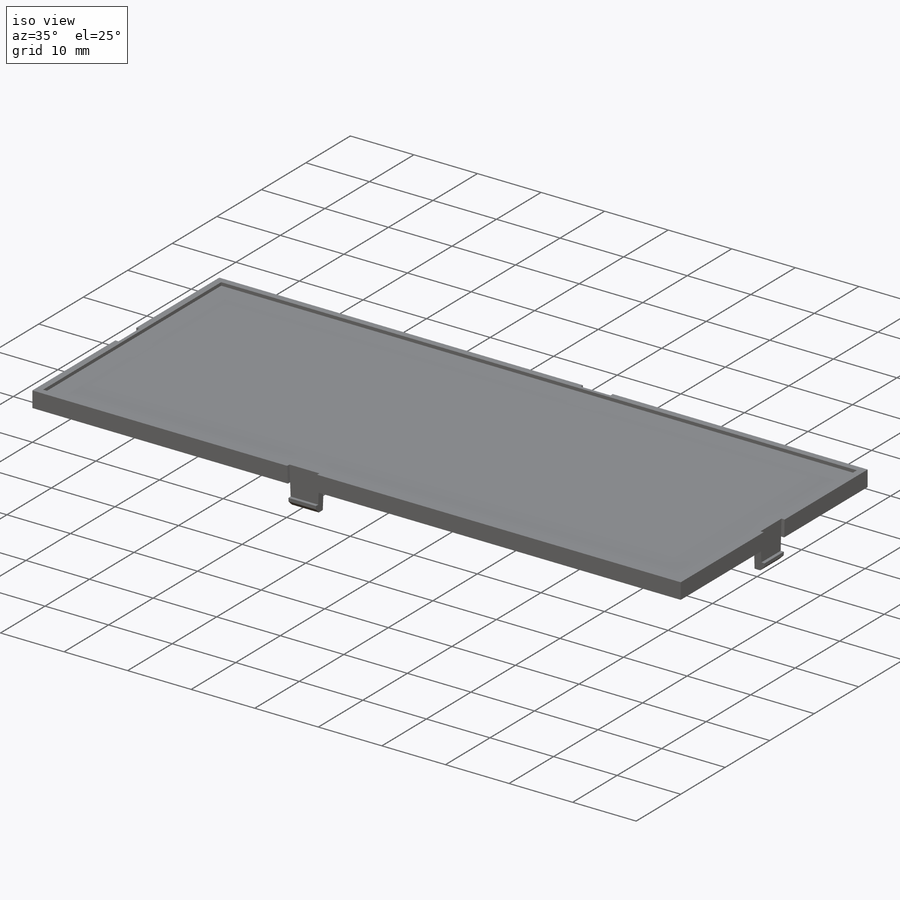
[diagram: iso view]
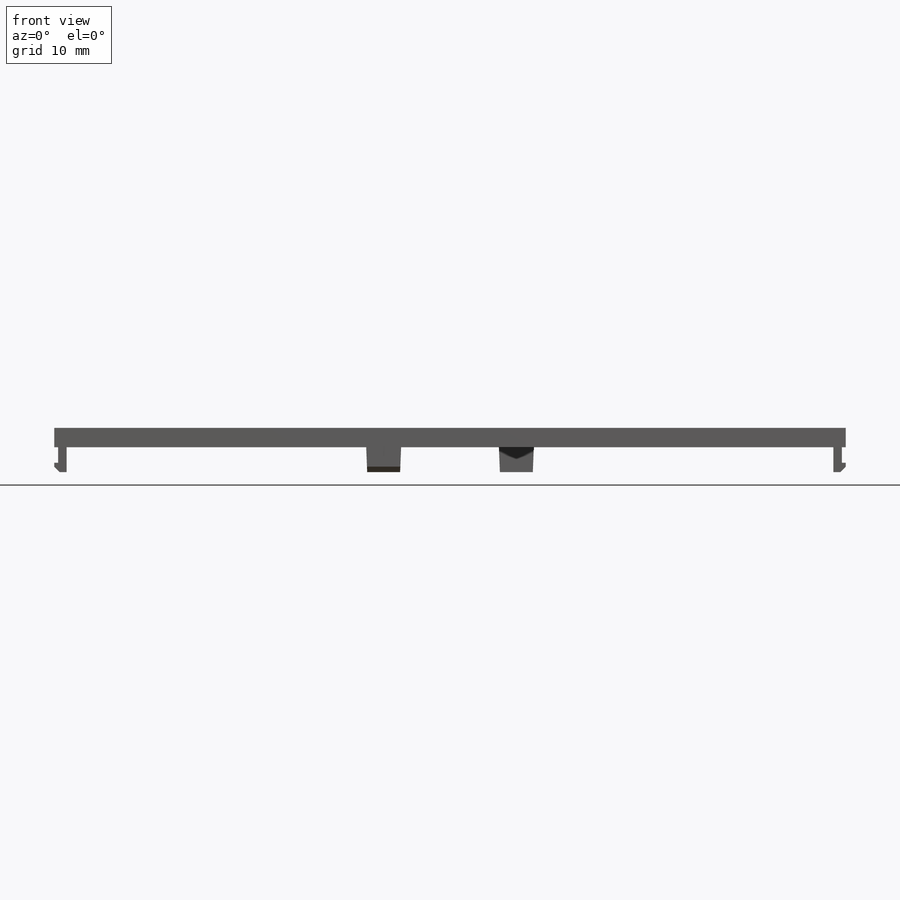
[diagram: front view]
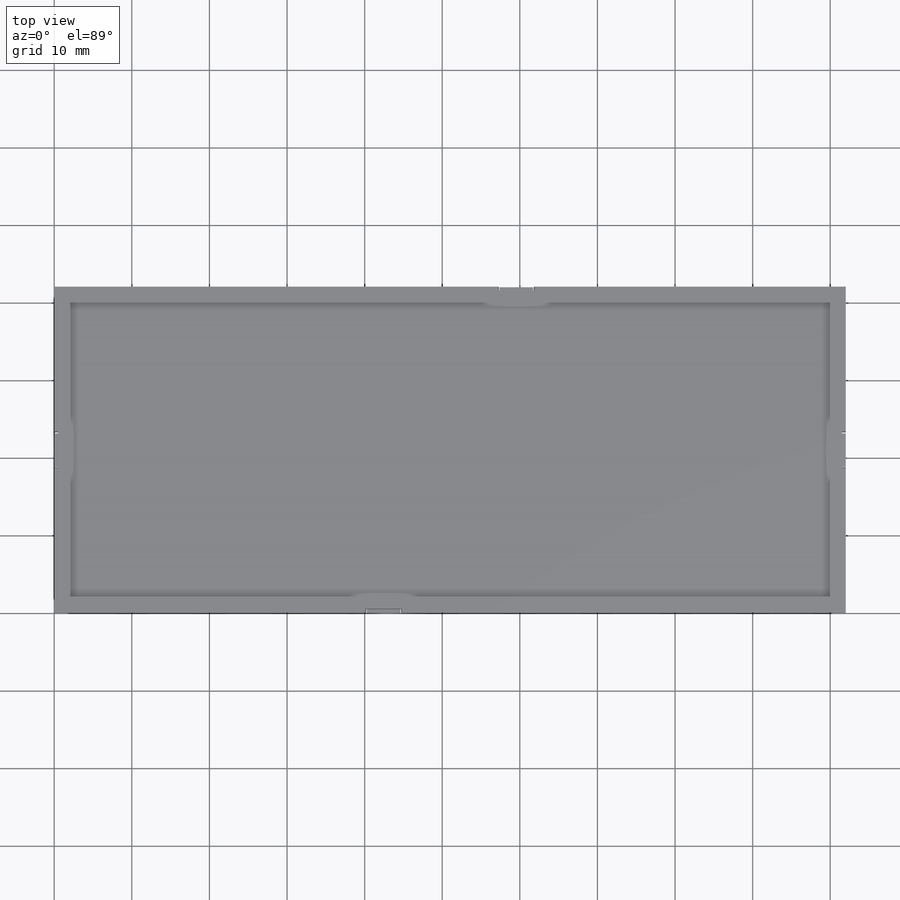
[diagram: top view]
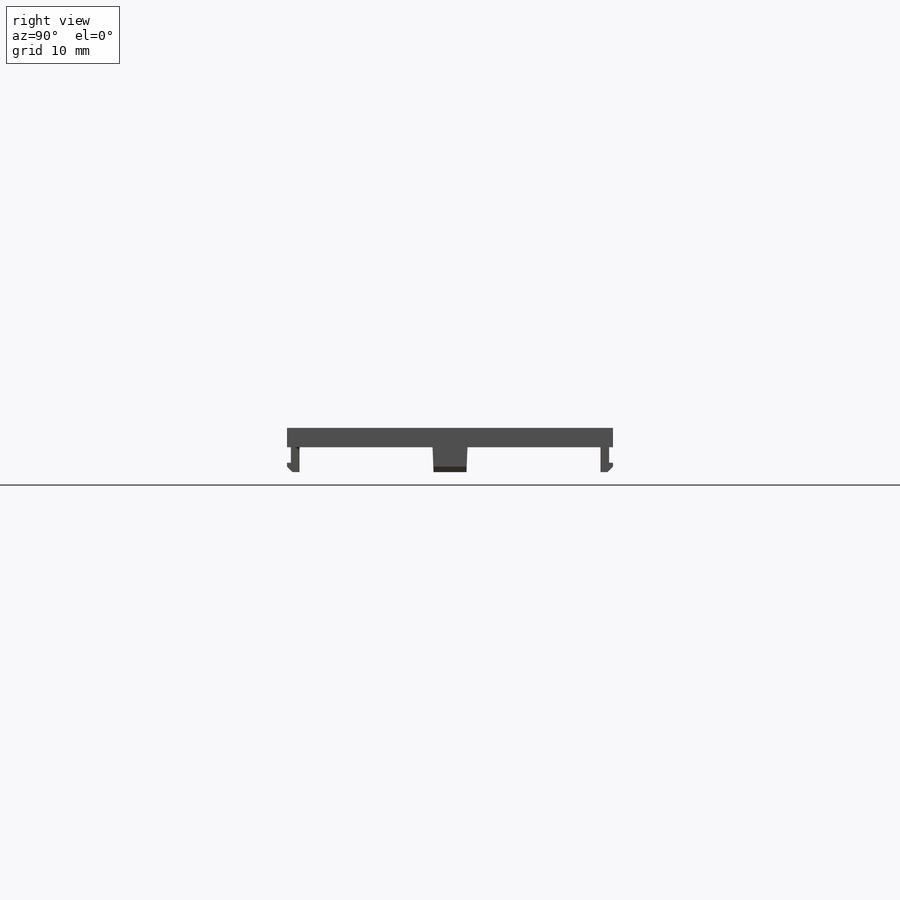
[diagram: right view]
SOLIDWORKS PART (.sldprt)
format: sldprt  version: not decoded by parser v0  size: 885,760 bytes
history: native  units: mm
features: sketch x16, cut_extrude x10, extrude x6, material x1 (+14 scaffold rows collapsed)
feature tree (47):
  scaffold x14  (default folders/planes/origin — collapsed)
  material  "ABS"
  sketch  "Sketch1"  dims[D1=42.0mm D2=102.0mm]
  extrude  "Kopējais"  Depth=2.5mm
  sketch  "Sketch2"  dims[D1=40.0mm D2=100.0mm D3=1.0mm D4=1.0mm]
  cut_extrude  "Cut-Extrude1"  Depth=0.5mm
  sketch  "Sketch3"  dims[D1=38.0mm D2=98.0mm D3=2.0mm D4=2.0mm]
  cut_extrude  "Cut-Extrude2"  Depth=0.5mm
  sketch  "Sketch4"  dims[D1=40.1mm D2=4.7mm D3=40.2mm D4=4.5mm]
  cut_extrude  "Cut-Extrude3"  Depth=0.5mm
  sketch  "Sketch5"  dims[D1=4.7mm D2=4.5mm D3=40.1mm D4=40.2mm]
  cut_extrude  "Cut-Extrude4"  Depth=0.5mm
  sketch  "Sketch6"  dims[D1=4.7mm D2=4.5mm D3=18.65mm D4=18.75mm]
  cut_extrude  "Cut-Extrude5"  Depth=0.5mm
  sketch  "Sketch7"
  cut_extrude  "Cut-Extrude6"  Depth=0.5mm
  sketch  "Sketch8"  dims[c1.D1=~2.79257mm c1.D2=~4.79257mm c2.D1=5.2mm]
  extrude  "Boss-Extrude3"  Depth=1.1mm
  sketch  "Sketch10"
  extrude  "Boss-Extrude4"  Depth=1.2mm
  sketch  "Sketch11"  dims[c1.D1=~0.640758mm c2.D1=~119.481616deg c3.D1=~0.559242mm c4.D1=45.0deg c4.D2=0.5mm c4.D3=0.9mm]
  sketch  "Sketch12"
  extrude  "Boss-Extrude6"  [1 undecoded]
  cut_extrude  "Cut-Extrude9"  Depth=1.2mm
  sketch  "Sketch13"  dims[D1=0.0mm]
  extrude  "Boss-Extrude8"  [1 undecoded]
  sketch  "Sketch16"
  sketch  "Sketch17"
  cut_extrude  "Cut-Extrude12"  Depth=4.2mm
  extrude  "Boss-Extrude10"  [1 undecoded]
  sketch  "Sketch22"
  cut_extrude  "Cut-Extrude13"  Depth=26mm
  sketch  "Sketch23"
  cut_extrude  "Cut-Extrude14"  Depth=26mm
decode coverage: 22 of 32 modeling features carry decoded parameters
note: ~ marks probable driven/reference dimensions
note: 3 parameter values undecoded
summary: no parameter record found for 3 features
note: suppression state not decoded; provenance and decode notes live in map.json
